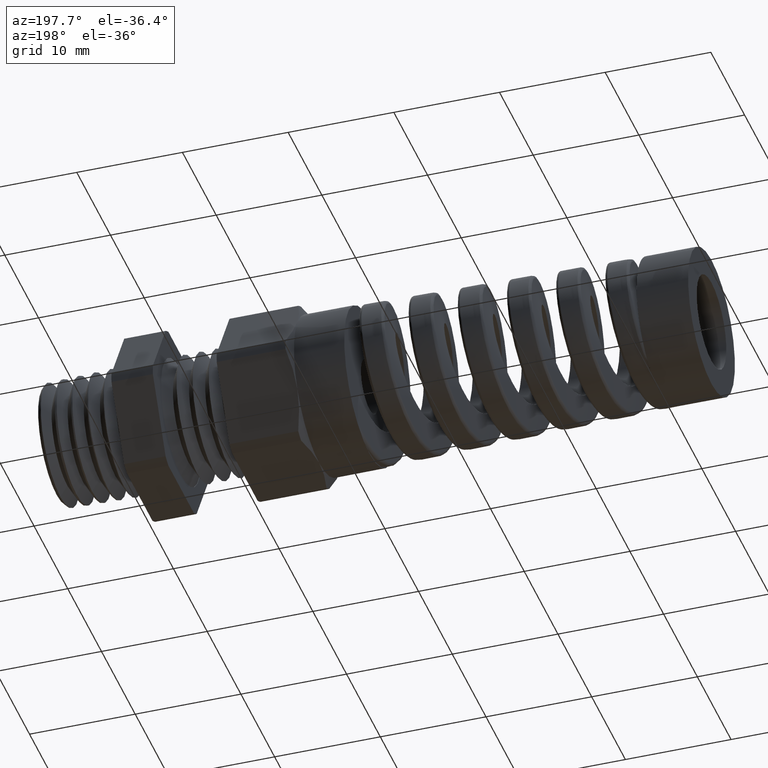
[diagram: clean part render]
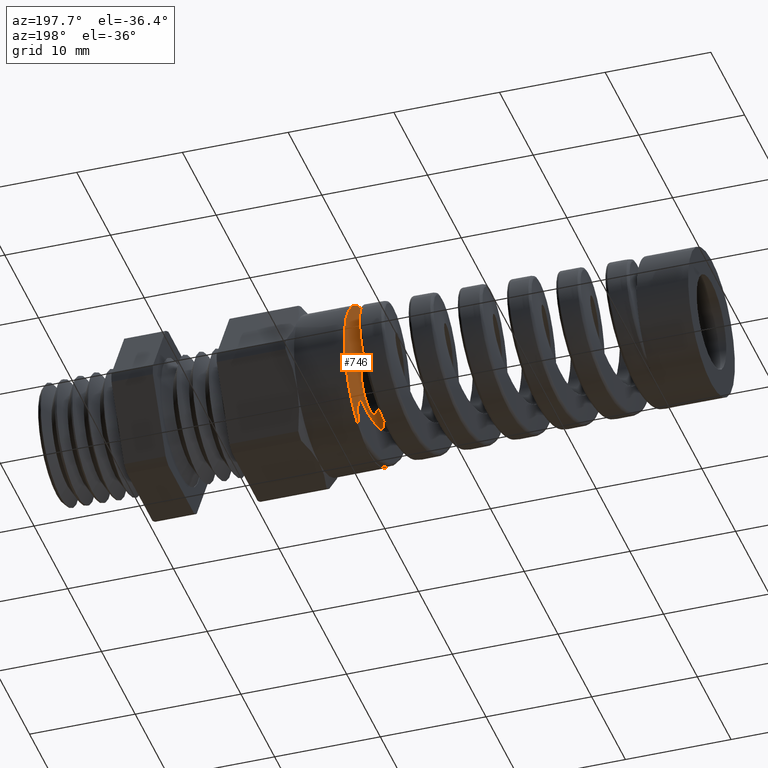
[diagram: same view with one face highlighted and labeled with its STEP entity id]
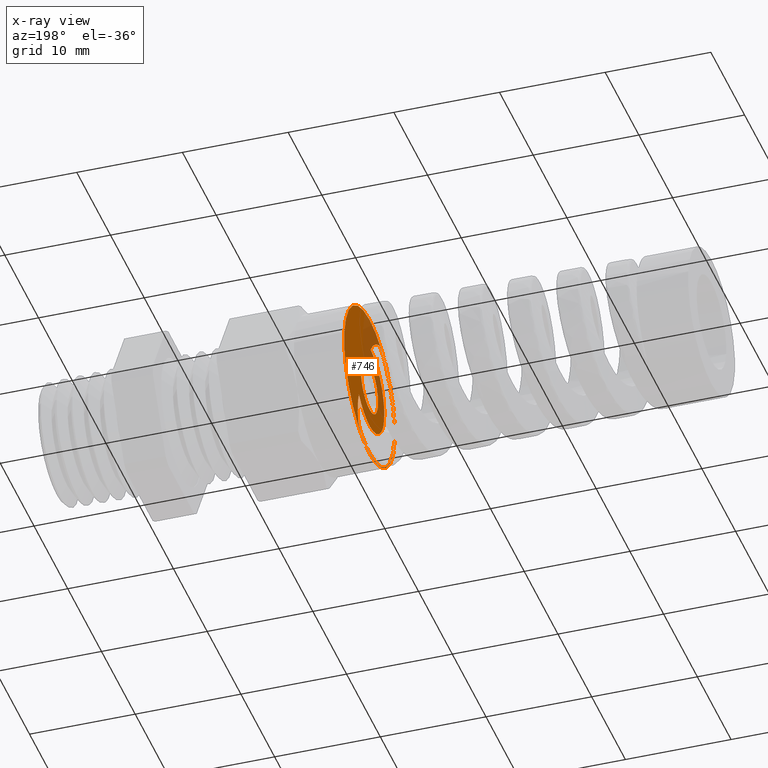
[diagram: x-ray of the same camera — body ghosted, the highlighted face saturated]
A machine part, auxiliary view. The second image highlights one B-rep face of the part: STEP entity #746.
The next image is the same camera in x-ray: the body ghosted, the highlighted face saturated — about 28% of this face is hidden behind the body in this view.
In plain terms, the highlighted planar face has unit normal (-1, 0, 0).
Its self-contained STEP definition (entity closure, byte-faithful):
#506 = EDGE_CURVE ( 'NONE', #5315, #5332, #1241, .T. ) ;
#582 = EDGE_CURVE ( 'NONE', #9674, #9672, #2118, .T. ) ;
#669 = EDGE_LOOP ( 'NONE', ( #670, #671 ) ) ;
#670 = ORIENTED_EDGE ( 'NONE', *, *, #9675, .T. ) ;
#671 = ORIENTED_EDGE ( 'NONE', *, *, #582, .T. ) ;
#672 = EDGE_LOOP ( 'NONE', ( #673, #732, #733, #734, #737, #739, #740, #718 ) ) ;
#673 = ORIENTED_EDGE ( 'NONE', *, *, #730, .F. ) ;
#718 = ORIENTED_EDGE ( 'NONE', *, *, #719, .T. ) ;
#719 = EDGE_CURVE ( 'NONE', #742, #731, #2406, .T. ) ;
#730 = EDGE_CURVE ( 'NONE', #1177, #731, #2665, .T. ) ;
#731 = VERTEX_POINT ( 'NONE', #3057 ) ;
#732 = ORIENTED_EDGE ( 'NONE', *, *, #1180, .T. ) ;
#733 = ORIENTED_EDGE ( 'NONE', *, *, #1196, .T. ) ;
#734 = ORIENTED_EDGE ( 'NONE', *, *, #735, .F. ) ;
#735 = EDGE_CURVE ( 'NONE', #736, #1138, #3050, .T. ) ;
#736 = VERTEX_POINT ( 'NONE', #3049 ) ;
#737 = ORIENTED_EDGE ( 'NONE', *, *, #738, .T. ) ;
#738 = EDGE_CURVE ( 'NONE', #736, #897, #3040, .T. ) ;
#739 = ORIENTED_EDGE ( 'NONE', *, *, #896, .T. ) ;
#740 = ORIENTED_EDGE ( 'NONE', *, *, #741, .T. ) ;
#741 = EDGE_CURVE ( 'NONE', #836, #742, #3038, .T. ) ;
#742 = VERTEX_POINT ( 'NONE', #3039 ) ;
#746 = ADVANCED_FACE ( 'NONE', ( #3081, #3080, #3079 ), #3078, .T. ) ;
#747 = EDGE_LOOP ( 'NONE', ( #748, #749 ) ) ;
#748 = ORIENTED_EDGE ( 'NONE', *, *, #506, .F. ) ;
#749 = ORIENTED_EDGE ( 'NONE', *, *, #5336, .F. ) ;
#836 = VERTEX_POINT ( 'NONE', #5411 ) ;
#896 = EDGE_CURVE ( 'NONE', #897, #836, #7512, .T. ) ;
#897 = VERTEX_POINT ( 'NONE', #7513 ) ;
#1138 = VERTEX_POINT ( 'NONE', #8522 ) ;
#1140 = VERTEX_POINT ( 'NONE', #8524 ) ;
#1177 = VERTEX_POINT ( 'NONE', #8753 ) ;
#1180 = EDGE_CURVE ( 'NONE', #1177, #1140, #8822, .T. ) ;
#1196 = EDGE_CURVE ( 'NONE', #1140, #1138, #8964, .T. ) ;
#1238 = CARTESIAN_POINT ( 'NONE',  ( -0.8560352248470227700, 0.0000000000000000000, 0.0000000000000000000 ) ) ;
#1239 = AXIS2_PLACEMENT_3D ( 'NONE', #1238, #1472, #1764 ) ;
#1241 = CIRCLE ( 'NONE', #1239, 0.1000000000000000100 ) ;
#1472 = DIRECTION ( 'NONE',  ( -1.000000000000000000, 0.0000000000000000000, 0.0000000000000000000 ) ) ;
#1764 = DIRECTION ( 'NONE',  ( 0.0000000000000000000, 0.0000000000000000000, 1.000000000000000000 ) ) ;
#2115 = DIRECTION ( 'NONE',  ( 0.0000000000000000000, 0.0000000000000000000, 1.000000000000000000 ) ) ;
#2116 = DIRECTION ( 'NONE',  ( -1.000000000000000000, 0.0000000000000000000, 0.0000000000000000000 ) ) ;
#2117 = AXIS2_PLACEMENT_3D ( 'NONE', #2122, #2116, #2115 ) ;
#2118 = CIRCLE ( 'NONE', #2117, 0.2950000000000000400 ) ;
#2122 = CARTESIAN_POINT ( 'NONE',  ( -0.8560352248470227700, 0.0000000000000000000, 0.0000000000000000000 ) ) ;
#2392 = CARTESIAN_POINT ( 'NONE',  ( -0.8560352248470229900, 0.1308715002939214200, -0.2506457375273583000 ) ) ;
#2393 = CARTESIAN_POINT ( 'NONE',  ( -0.8560352248470226600, 0.1306364873795631800, -0.2516939675120165000 ) ) ;
#2394 = CARTESIAN_POINT ( 'NONE',  ( -0.8560352248470227700, 0.1299151601498722300, -0.2525172650062703100 ) ) ;
#2395 = CARTESIAN_POINT ( 'NONE',  ( -0.8560352248470227700, 0.1285444616846038400, -0.2540745706315495300 ) ) ;
#2396 = CARTESIAN_POINT ( 'NONE',  ( -0.8560352248470227700, 0.1277990046807995800, -0.2547901733498594300 ) ) ;
#2397 = CARTESIAN_POINT ( 'NONE',  ( -0.8560352248470226600, 0.1254863462232501900, -0.2568569597275476300 ) ) ;
#2398 = CARTESIAN_POINT ( 'NONE',  ( -0.8560352248470227700, 0.1238344843325008000, -0.2581256376979236300 ) ) ;
#2399 = CARTESIAN_POINT ( 'NONE',  ( -0.8560352248470227700, 0.1187675153674368500, -0.2617488280943767200 ) ) ;
#2400 = CARTESIAN_POINT ( 'NONE',  ( -0.8560352248470225500, 0.1152191473305559500, -0.2639228550018830100 ) ) ;
#2401 = CARTESIAN_POINT ( 'NONE',  ( -0.8560352248470229900, 0.1043511458874266400, -0.2700007794115090700 ) ) ;
#2402 = CARTESIAN_POINT ( 'NONE',  ( -0.8560352248470226600, 0.09678109554371365500, -0.2734515709416423500 ) ) ;
#2403 = CARTESIAN_POINT ( 'NONE',  ( -0.8560352248470226600, 0.07353816526856543600, -0.2824220769819798500 ) ) ;
#2404 = CARTESIAN_POINT ( 'NONE',  ( -0.8560352248470225500, 0.05737357773850913800, -0.2865156293388077500 ) ) ;
#2405 = CARTESIAN_POINT ( 'NONE',  ( -0.8560352248470227700, 0.04092457506660526100, -0.2888461724061073800 ) ) ;
#2406 = B_SPLINE_CURVE_WITH_KNOTS ( 'NONE', 3,
 ( #2405, #2404, #2403, #2402, #2401, #2400, #2399, #2398, #2397, #2396, #2395, #2394, #2393, #2392 ),
 .UNSPECIFIED., .F., .F.,
 ( 4, 2, 2, 2, 2, 2, 4 ),
 ( 0.0000000000000000000, 0.001264694432610861400, 0.001897041648916292400, 0.002213215257069008200, 0.002371302061145366200, 0.002450345463183544500, 0.002529388865221722900 ),
 .UNSPECIFIED. ) ;
#2665 = B_SPLINE_CURVE_WITH_KNOTS ( 'NONE', 3,
 ( #3056, #3055, #3054, #3053, #3052, #3051 ),
 .UNSPECIFIED., .F., .F.,
 ( 4, 2, 4 ),
 ( 0.0001022464063198882500, 0.001784526186437615800, 0.003466805966555343500 ),
 .UNSPECIFIED. ) ;
#3028 = CARTESIAN_POINT ( 'NONE',  ( -0.8560352248470226600, -0.1192886008921552100, 0.2597343858803375900 ) ) ;
#3029 = CARTESIAN_POINT ( 'NONE',  ( -0.8560352248470226600, -0.1174100439722720900, 0.2601347455448672100 ) ) ;
#3030 = CARTESIAN_POINT ( 'NONE',  ( -0.8560352248470227700, -0.1145643475163061900, 0.2605169466752290100 ) ) ;
#3031 = CARTESIAN_POINT ( 'NONE',  ( -0.8560352248470225500, -0.1136132302466506700, 0.2606093553235490600 ) ) ;
#3032 = CARTESIAN_POINT ( 'NONE',  ( -0.8560352248470227700, -0.1116990697582133500, 0.2606306362397596800 ) ) ;
#3033 = CARTESIAN_POINT ( 'NONE',  ( -0.8560352248470226600, -0.1107032461859821100, 0.2606286395334097600 ) ) ;
#3034 = CARTESIAN_POINT ( 'NONE',  ( -0.8560352248470224400, -0.1098269853388600800, 0.2601792802479900900 ) ) ;
#3035 = DIRECTION ( 'NONE',  ( 1.000000000000000000, 0.0000000000000000000, 0.0000000000000000000 ) ) ;
#3036 = CARTESIAN_POINT ( 'NONE',  ( -0.8560352248470227700, 0.0000000000000000000, 0.0000000000000000000 ) ) ;
#3037 = AXIS2_PLACEMENT_3D ( 'NONE', #3036, #3035, #3082 ) ;
#3038 = CIRCLE ( 'NONE', #3037, 0.2917309242401993100 ) ;
#3039 = CARTESIAN_POINT ( 'NONE',  ( -0.8560352248470227700, 0.04092457506660526100, -0.2888461724061073800 ) ) ;
#3040 = B_SPLINE_CURVE_WITH_KNOTS ( 'NONE', 3,
 ( #3034, #3033, #3032, #3031, #3030, #3029, #3028, #3089, #3088, #3087, #3086, #3085, #3084, #3083 ),
 .UNSPECIFIED., .F., .F.,
 ( 4, 2, 2, 2, 2, 2, 4 ),
 ( 2.461306093601066300E-017, 7.300672769452098600E-005, 0.0001460134553890173600, 0.0002920269107780097300, 0.0005840538215559952900, 0.001168107643111965000, 0.002336215286223905200 ),
 .UNSPECIFIED. ) ;
#3041 = CARTESIAN_POINT ( 'NONE',  ( -0.8560352248470126700, -0.01293216062615085500, 0.1723554407880844600 ) ) ;
#3042 = CARTESIAN_POINT ( 'NONE',  ( -0.8560352248470227700, -0.01872085915406168300, 0.1818582269759618800 ) ) ;
#3043 = CARTESIAN_POINT ( 'NONE',  ( -0.8560352248470231000, -0.02519457450815098400, 0.1908000982568510100 ) ) ;
#3044 = CARTESIAN_POINT ( 'NONE',  ( -0.8560352248470227700, -0.03938190262674556200, 0.2076685709536274000 ) ) ;
#3045 = CARTESIAN_POINT ( 'NONE',  ( -0.8560352248470229900, -0.04713005064571954000, 0.2156237401469584500 ) ) ;
#3046 = CARTESIAN_POINT ( 'NONE',  ( -0.8560352248470225500, -0.07195240362070194600, 0.2378202649759772500 ) ) ;
#3047 = CARTESIAN_POINT ( 'NONE',  ( -0.8560352248470224400, -0.09016548283397091100, 0.2500965762850302900 ) ) ;
#3048 = CARTESIAN_POINT ( 'NONE',  ( -0.8560352248470224400, -0.1098269853388600800, 0.2601792802479900900 ) ) ;
#3049 = CARTESIAN_POINT ( 'NONE',  ( -0.8560352248470224400, -0.1098269853388600800, 0.2601792802479900900 ) ) ;
#3050 = B_SPLINE_CURVE_WITH_KNOTS ( 'NONE', 3,
 ( #3048, #3047, #3046, #3045, #3044, #3043, #3042, #3041 ),
 .UNSPECIFIED., .F., .F.,
 ( 4, 2, 2, 4 ),
 ( 0.0003083558664418151200, 0.001981948714519494200, 0.002818745138558334200, 0.003655541562597173700 ),
 .UNSPECIFIED. ) ;
#3051 = CARTESIAN_POINT ( 'NONE',  ( -0.8560352248470229900, 0.1308715002939214200, -0.2506457375273583000 ) ) ;
#3052 = CARTESIAN_POINT ( 'NONE',  ( -0.8560352248470232100, 0.1357397013623871900, -0.2289320613013113300 ) ) ;
#3053 = CARTESIAN_POINT ( 'NONE',  ( -0.8560352248470231000, 0.1379239511384031400, -0.2069641291456786600 ) ) ;
#3054 = CARTESIAN_POINT ( 'NONE',  ( -0.8560352248470232100, 0.1361293436134646500, -0.1624444217060346500 ) ) ;
#3055 = CARTESIAN_POINT ( 'NONE',  ( -0.8560352248470219900, 0.1321785097540432700, -0.1406291072393546800 ) ) ;
#3056 = CARTESIAN_POINT ( 'NONE',  ( -0.8560352248470227700, 0.1247625259851947900, -0.1196158470166431700 ) ) ;
#3057 = CARTESIAN_POINT ( 'NONE',  ( -0.8560352248470229900, 0.1308715002939214200, -0.2506457375273583000 ) ) ;
#3074 = DIRECTION ( 'NONE',  ( 0.0000000000000000000, 0.0000000000000000000, 1.000000000000000000 ) ) ;
#3075 = DIRECTION ( 'NONE',  ( -1.000000000000000000, 0.0000000000000000000, 0.0000000000000000000 ) ) ;
#3076 = CARTESIAN_POINT ( 'NONE',  ( -0.8560352248470227700, 0.0000000000000000000, 0.0000000000000000000 ) ) ;
#3077 = AXIS2_PLACEMENT_3D ( 'NONE', #3076, #3075, #3074 ) ;
#3078 = PLANE ( 'NONE',  #3077 ) ;
#3079 = FACE_BOUND ( 'NONE', #672, .T. ) ;
#3080 = FACE_OUTER_BOUND ( 'NONE', #669, .T. ) ;
#3081 = FACE_BOUND ( 'NONE', #747, .T. ) ;
#3082 = DIRECTION ( 'NONE',  ( 0.0000000000000000000, 0.0000000000000000000, 1.000000000000000000 ) ) ;
#3083 = CARTESIAN_POINT ( 'NONE',  ( -0.8560352248470227700, -0.1902646190054693200, 0.2211477038378299200 ) ) ;
#3084 = CARTESIAN_POINT ( 'NONE',  ( -0.8560352248470227700, -0.1786985808968920300, 0.2310985547666030400 ) ) ;
#3085 = CARTESIAN_POINT ( 'NONE',  ( -0.8560352248470231000, -0.1662238430746058600, 0.2395815682735515100 ) ) ;
#3086 = CARTESIAN_POINT ( 'NONE',  ( -0.8560352248470227700, -0.1461628428769267400, 0.2501271989899249700 ) ) ;
#3087 = CARTESIAN_POINT ( 'NONE',  ( -0.8560352248470231000, -0.1392059741833742100, 0.2532967993739468900 ) ) ;
#3088 = CARTESIAN_POINT ( 'NONE',  ( -0.8560352248470226600, -0.1284637806308885100, 0.2572007584643756200 ) ) ;
#3089 = CARTESIAN_POINT ( 'NONE',  ( -0.8560352248470226600, -0.1248402424760574100, 0.2583641478927080100 ) ) ;
#5315 = VERTEX_POINT ( 'NONE', #9293 ) ;
#5332 = VERTEX_POINT ( 'NONE', #9333 ) ;
#5336 = EDGE_CURVE ( 'NONE', #5332, #5315, #9317, .T. ) ;
#5411 = CARTESIAN_POINT ( 'NONE',  ( -0.8560352248470227700, 0.0000000000000000000, -0.2917309242401993100 ) ) ;
#7508 = DIRECTION ( 'NONE',  ( 0.0000000000000000000, 0.0000000000000000000, 1.000000000000000000 ) ) ;
#7509 = DIRECTION ( 'NONE',  ( 1.000000000000000000, 0.0000000000000000000, 0.0000000000000000000 ) ) ;
#7510 = CARTESIAN_POINT ( 'NONE',  ( -0.8560352248470227700, 0.0000000000000000000, 0.0000000000000000000 ) ) ;
#7511 = AXIS2_PLACEMENT_3D ( 'NONE', #7510, #7509, #7508 ) ;
#7512 = CIRCLE ( 'NONE', #7511, 0.2917309242401993100 ) ;
#7513 = CARTESIAN_POINT ( 'NONE',  ( -0.8560352248470227700, -0.1902646190054693200, 0.2211477038378299200 ) ) ;
#8522 = CARTESIAN_POINT ( 'NONE',  ( -0.8560352248470126700, -0.01293216062615085500, 0.1723554407880844600 ) ) ;
#8524 = CARTESIAN_POINT ( 'NONE',  ( -0.8560352248470227700, 0.0000000000000000000, -0.1728399223203811500 ) ) ;
#8753 = CARTESIAN_POINT ( 'NONE',  ( -0.8560352248470227700, 0.1247625259851947900, -0.1196158470166431700 ) ) ;
#8810 = DIRECTION ( 'NONE',  ( 0.0000000000000000000, 0.0000000000000000000, 1.000000000000000000 ) ) ;
#8811 = DIRECTION ( 'NONE',  ( -1.000000000000000000, 0.0000000000000000000, 0.0000000000000000000 ) ) ;
#8812 = CARTESIAN_POINT ( 'NONE',  ( -0.8560352248470227700, 0.0000000000000000000, 0.0000000000000000000 ) ) ;
#8821 = AXIS2_PLACEMENT_3D ( 'NONE', #8812, #8811, #8810 ) ;
#8822 = CIRCLE ( 'NONE', #8821, 0.1728399223203811500 ) ;
#8960 = DIRECTION ( 'NONE',  ( 0.0000000000000000000, 0.0000000000000000000, 1.000000000000000000 ) ) ;
#8961 = DIRECTION ( 'NONE',  ( -1.000000000000000000, 0.0000000000000000000, 0.0000000000000000000 ) ) ;
#8962 = CARTESIAN_POINT ( 'NONE',  ( -0.8560352248470227700, 0.0000000000000000000, 0.0000000000000000000 ) ) ;
#8963 = AXIS2_PLACEMENT_3D ( 'NONE', #8962, #8961, #8960 ) ;
#8964 = CIRCLE ( 'NONE', #8963, 0.1728399223203811500 ) ;
#9293 = CARTESIAN_POINT ( 'NONE',  ( -0.8560352248470227700, 0.0000000000000000000, 0.1000000000000000100 ) ) ;
#9314 = DIRECTION ( 'NONE',  ( 0.0000000000000000000, 0.0000000000000000000, 1.000000000000000000 ) ) ;
#9315 = DIRECTION ( 'NONE',  ( -1.000000000000000000, 0.0000000000000000000, 0.0000000000000000000 ) ) ;
#9316 = AXIS2_PLACEMENT_3D ( 'NONE', #9323, #9315, #9314 ) ;
#9317 = CIRCLE ( 'NONE', #9316, 0.1000000000000000100 ) ;
#9323 = CARTESIAN_POINT ( 'NONE',  ( -0.8560352248470227700, 0.0000000000000000000, 0.0000000000000000000 ) ) ;
#9333 = CARTESIAN_POINT ( 'NONE',  ( -0.8560352248470227700, 1.224646799147353300E-017, -0.1000000000000000100 ) ) ;
#9383 = DIRECTION ( 'NONE',  ( 0.0000000000000000000, 0.0000000000000000000, 1.000000000000000000 ) ) ;
#9384 = DIRECTION ( 'NONE',  ( -1.000000000000000000, 0.0000000000000000000, 0.0000000000000000000 ) ) ;
#9385 = CARTESIAN_POINT ( 'NONE',  ( -0.8560352248470227700, 0.0000000000000000000, 0.0000000000000000000 ) ) ;
#9386 = AXIS2_PLACEMENT_3D ( 'NONE', #9385, #9384, #9383 ) ;
#9387 = CIRCLE ( 'NONE', #9386, 0.2950000000000000400 ) ;
#9388 = CARTESIAN_POINT ( 'NONE',  ( -0.8560352248470227700, 3.612708057484693200E-017, -0.2950000000000001000 ) ) ;
#9389 = CARTESIAN_POINT ( 'NONE',  ( -0.8560352248470227700, 0.0000000000000000000, 0.2950000000000000400 ) ) ;
#9672 = VERTEX_POINT ( 'NONE', #9389 ) ;
#9674 = VERTEX_POINT ( 'NONE', #9388 ) ;
#9675 = EDGE_CURVE ( 'NONE', #9672, #9674, #9387, .T. ) ;